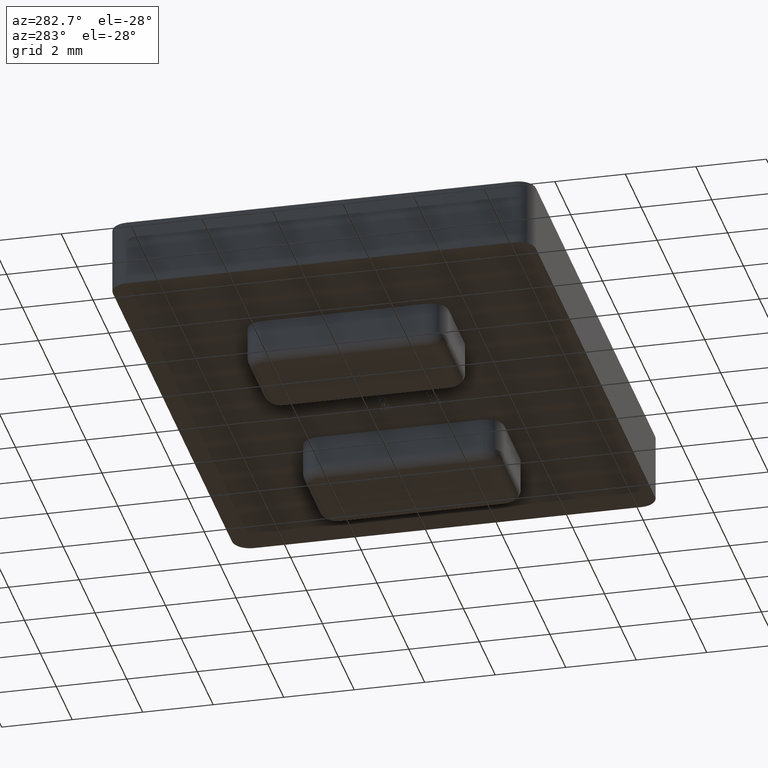
[diagram: clean part render]
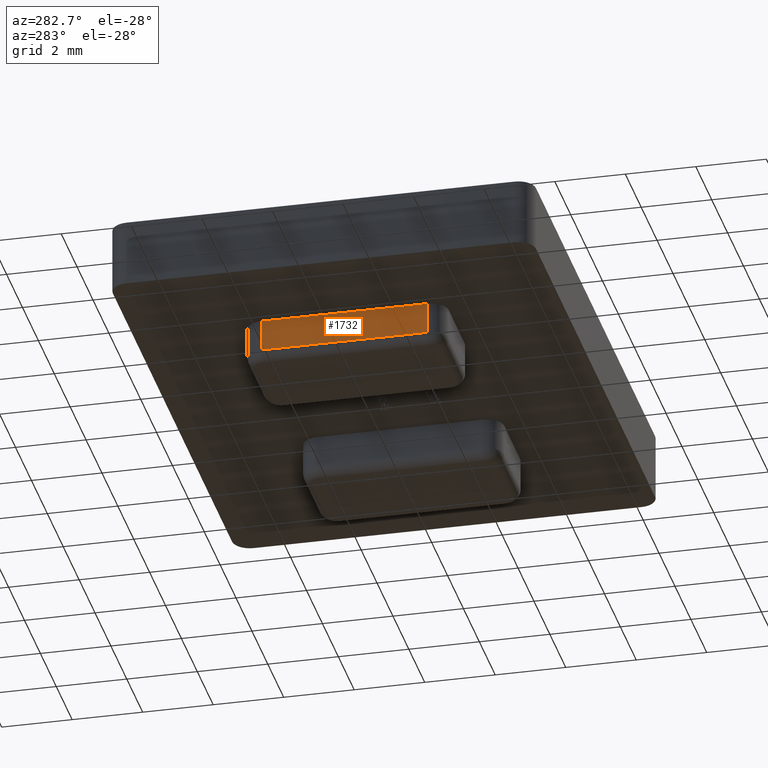
[diagram: same view with one face highlighted and labeled with its STEP entity id]
A machine part, auxiliary view. The second image highlights one B-rep face of the part: STEP entity #1732.
In plain terms, the highlighted planar face has unit normal (1, 0, 0).
Its self-contained STEP definition (entity closure, byte-faithful):
#373 = DIRECTION ( 'NONE',  ( 1.000000000000000000, 0.0000000000000000000, 0.0000000000000000000 ) ) ;
#864 = LINE ( 'NONE', #10387, #5227 ) ;
#1366 = CARTESIAN_POINT ( 'NONE',  ( -5.000000000000000000, 2.349999999999999600, 0.0000000000000000000 ) ) ;
#1629 = LINE ( 'NONE', #2967, #12768 ) ;
#1732 = ADVANCED_FACE ( 'NONE', ( #7622 ), #2188, .F. ) ;
#1769 = CARTESIAN_POINT ( 'NONE',  ( -5.000000000000000000, -2.350000000000000100, 0.0000000000000000000 ) ) ;
#2183 = LINE ( 'NONE', #11920, #4700 ) ;
#2188 = PLANE ( 'NONE',  #2663 ) ;
#2404 = EDGE_LOOP ( 'NONE', ( #2960, #6688, #10810, #9647 ) ) ;
#2663 = AXIS2_PLACEMENT_3D ( 'NONE', #4329, #373, #7865 ) ;
#2960 = ORIENTED_EDGE ( 'NONE', *, *, #12101, .T. ) ;
#2967 = CARTESIAN_POINT ( 'NONE',  ( -5.000000000000000000, 2.349999999999999600, -1.200000000000000000 ) ) ;
#3951 = VECTOR ( 'NONE', #12532, 1000.000000000000000 ) ;
#4037 = CARTESIAN_POINT ( 'NONE',  ( -5.000000000000000000, 2.849999999999999600, 0.0000000000000000000 ) ) ;
#4329 = CARTESIAN_POINT ( 'NONE',  ( -5.000000000000000000, 2.849999999999999600, -1.200000000000000000 ) ) ;
#4441 = VERTEX_POINT ( 'NONE', #13880 ) ;
#4700 = VECTOR ( 'NONE', #12249, 1000.000000000000000 ) ;
#5227 = VECTOR ( 'NONE', #6020, 1000.000000000000000 ) ;
#5273 = DIRECTION ( 'NONE',  ( -0.0000000000000000000, -0.0000000000000000000, -1.000000000000000000 ) ) ;
#5905 = VERTEX_POINT ( 'NONE', #11803 ) ;
#6020 = DIRECTION ( 'NONE',  ( 0.0000000000000000000, 0.0000000000000000000, 1.000000000000000000 ) ) ;
#6154 = EDGE_CURVE ( 'NONE', #5905, #11572, #864, .T. ) ;
#6688 = ORIENTED_EDGE ( 'NONE', *, *, #6782, .T. ) ;
#6782 = EDGE_CURVE ( 'NONE', #4441, #5905, #2183, .T. ) ;
#6796 = VERTEX_POINT ( 'NONE', #1366 ) ;
#7622 = FACE_OUTER_BOUND ( 'NONE', #2404, .T. ) ;
#7865 = DIRECTION ( 'NONE',  ( 0.0000000000000000000, 0.0000000000000000000, -1.000000000000000000 ) ) ;
#9647 = ORIENTED_EDGE ( 'NONE', *, *, #13282, .T. ) ;
#10026 = LINE ( 'NONE', #4037, #3951 ) ;
#10387 = CARTESIAN_POINT ( 'NONE',  ( -5.000000000000000000, -2.350000000000000100, -1.200000000000000000 ) ) ;
#10810 = ORIENTED_EDGE ( 'NONE', *, *, #6154, .T. ) ;
#11572 = VERTEX_POINT ( 'NONE', #1769 ) ;
#11803 = CARTESIAN_POINT ( 'NONE',  ( -5.000000000000000000, -2.350000000000000100, -0.9000000000000000200 ) ) ;
#11920 = CARTESIAN_POINT ( 'NONE',  ( -5.000000000000000000, -2.350000000000000100, -0.9000000000000000200 ) ) ;
#12101 = EDGE_CURVE ( 'NONE', #6796, #4441, #1629, .T. ) ;
#12249 = DIRECTION ( 'NONE',  ( -0.0000000000000000000, -1.000000000000000000, 0.0000000000000000000 ) ) ;
#12532 = DIRECTION ( 'NONE',  ( -0.0000000000000000000, 1.000000000000000000, -0.0000000000000000000 ) ) ;
#12768 = VECTOR ( 'NONE', #5273, 1000.000000000000000 ) ;
#13282 = EDGE_CURVE ( 'NONE', #11572, #6796, #10026, .T. ) ;
#13880 = CARTESIAN_POINT ( 'NONE',  ( -5.000000000000000000, 2.349999999999999600, -0.9000000000000000200 ) ) ;